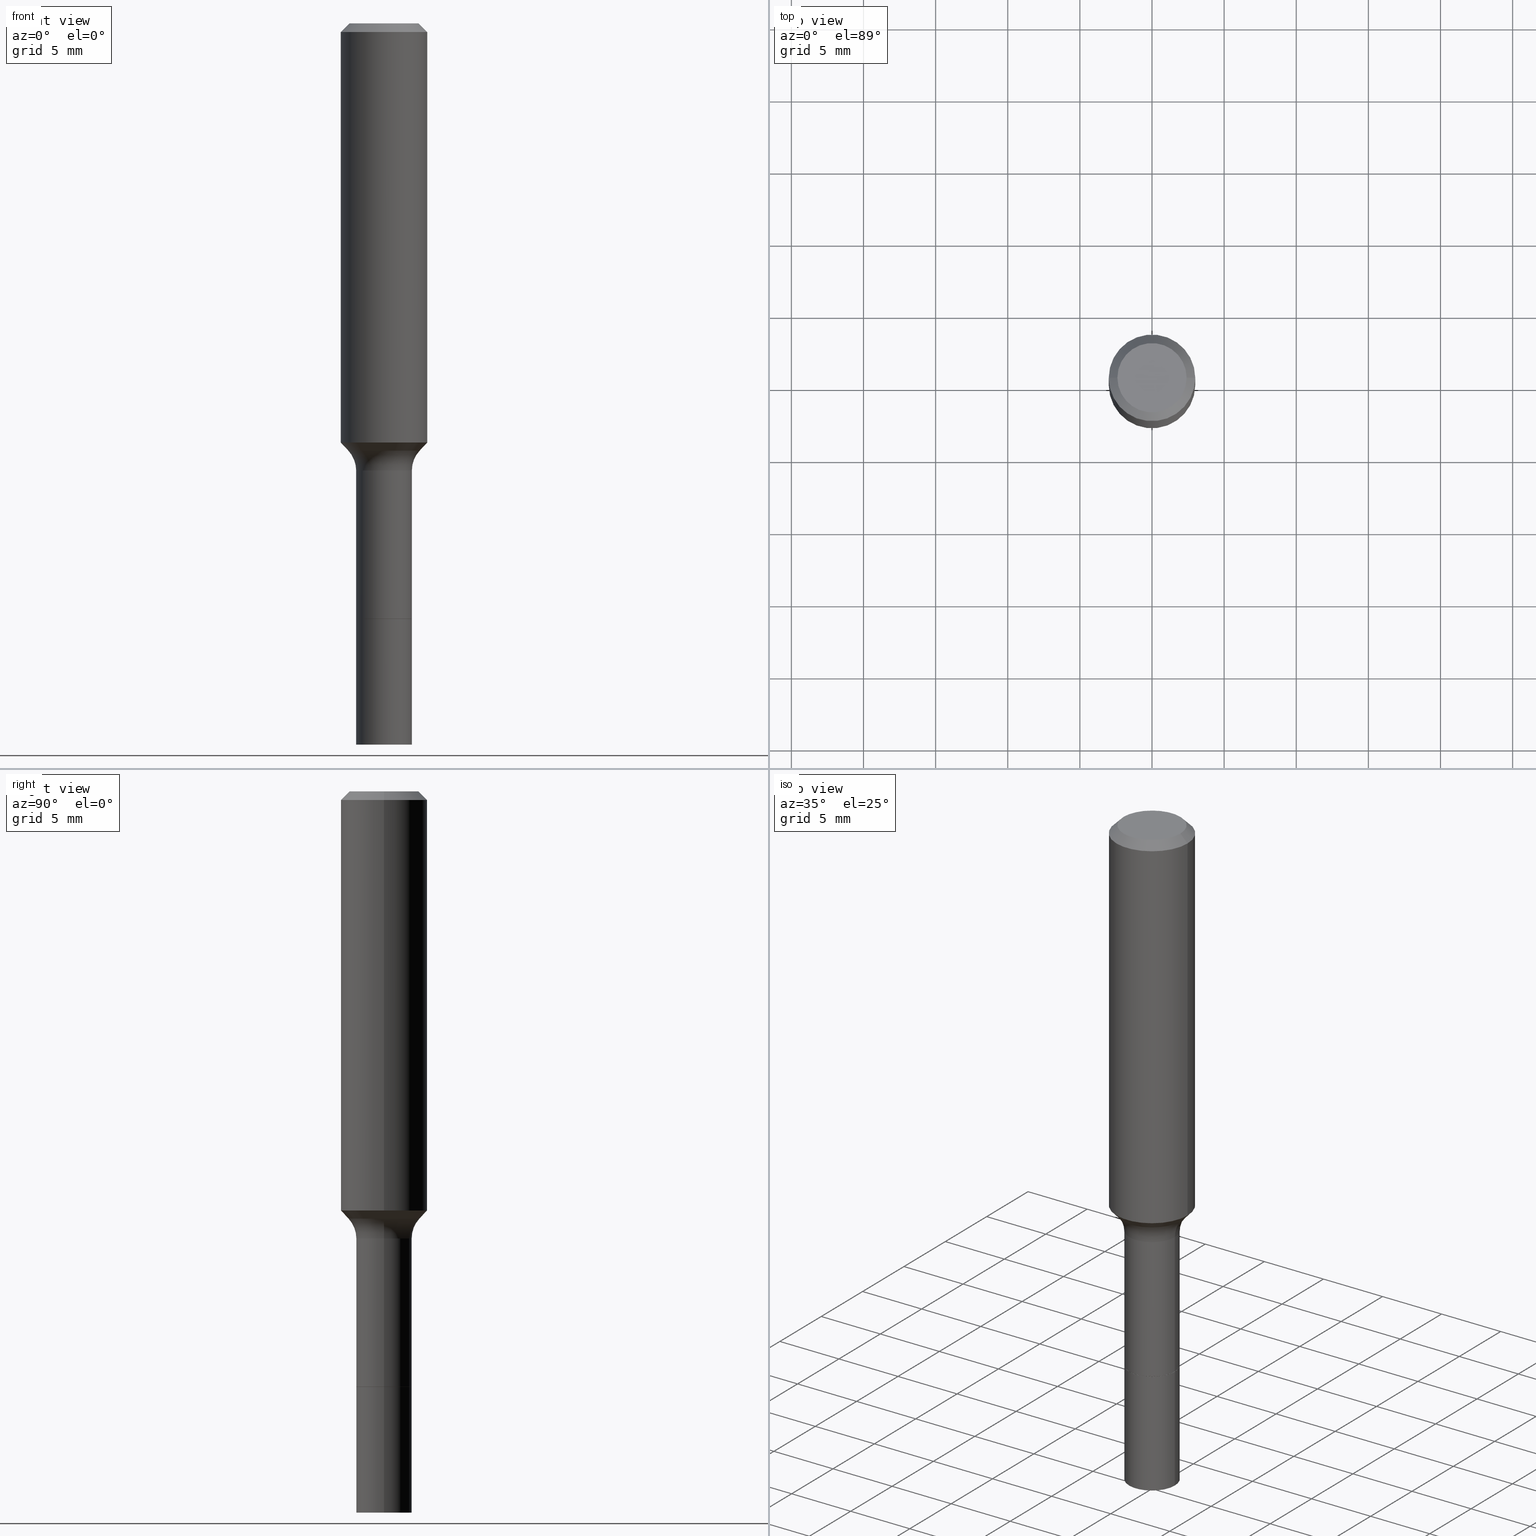
[diagram: canonical four-view strip — front | top / right | iso, engineering-drawing reading convention]
A machine part, canonical four-view strip (front | top / right | iso — engineering-drawing reading convention). The complete STEP part file that produces these views, byte-faithful:
ISO-10303-21;
HEADER;
FILE_DESCRIPTION (( 'STEP AP203' ),
    '1' );
FILE_NAME ('58494.STEP',
    '2025-04-01T15:23:46',
    ( '' ),
    ( '' ),
    'SwSTEP 2.0',
    'SolidWorks 2024',
    '' );
FILE_SCHEMA (( 'CONFIG_CONTROL_DESIGN' ));
ENDSEC;

DATA;
#1 = ORIENTED_EDGE ( 'NONE', *, *, #379, .F. ) ;
#2 = DIRECTION ( 'NONE',  ( 2.438088387897960049E-29, -3.491481338843145188E-15, -1.000000000000000000 ) ) ;
#3 = PERSON_AND_ORGANIZATION_ROLE ( 'creator' ) ;
#4 = DIRECTION ( 'NONE',  ( -2.445468806185136597E-29, 3.491481338843145583E-15, 1.000000000000000000 ) ) ;
#5 = EDGE_LOOP ( 'NONE', ( #263, #187 ) ) ;
#6 = DIRECTION ( 'NONE',  ( -0.6819983600625003639, 7.399397606724294465E-15, 0.7313537016191687945 ) ) ;
#7 = DIRECTION ( 'NONE',  ( 1.000000000000000000, -6.982962677686266711E-15, 4.876176775795936353E-29 ) ) ;
#8 = CARTESIAN_POINT ( 'NONE',  ( 3.975109544453939211E-29, -5.675402916289532927E-15, -1.625499999999999945 ) ) ;
#9 = EDGE_LOOP ( 'NONE', ( #117, #321 ) ) ;
#10 = DIRECTION ( 'NONE',  ( 1.000000000000000000, -6.982962677686269077E-15, 0.000000000000000000 ) ) ;
#11 = VERTEX_POINT ( 'NONE', #265 ) ;
#12 = EDGE_CURVE ( 'NONE', #181, #183, #143, .T. ) ;
#13 = CARTESIAN_POINT ( 'NONE',  ( 0.07549999999999998379, -6.202616598454845938E-15, -1.625499999999999945 ) ) ;
#14 = EDGE_CURVE ( 'NONE', #11, #380, #259, .T. ) ;
#15 = DIRECTION ( 'NONE',  ( -2.445468806185136877E-29, 3.491481338843145188E-15, 1.000000000000000000 ) ) ;
#16 = AXIS2_PLACEMENT_3D ( 'NONE', #277, #38, #42 ) ;
#17 = CARTESIAN_POINT ( 'NONE',  ( 4.813905344975441835E-29, -6.872981015512731707E-15, -1.968500000000000139 ) ) ;
#18 = DIRECTION ( 'NONE',  ( -2.445468806185136597E-29, 3.491481338843145583E-15, 1.000000000000000000 ) ) ;
#19 = FACE_OUTER_BOUND ( 'NONE', #5, .T. ) ;
#20 = DIRECTION ( 'NONE',  ( -2.445468806185136597E-29, 3.491481338843145583E-15, 1.000000000000000000 ) ) ;
#21 = ORIENTED_EDGE ( 'NONE', *, *, #454, .F. ) ;
#22 = CIRCLE ( 'NONE', #164, 0.07599999999999994260 ) ;
#23 = AXIS2_PLACEMENT_3D ( 'NONE', #463, #60, #347 ) ;
#24 = EDGE_LOOP ( 'NONE', ( #386, #293 ) ) ;
#25 = DIMENSIONAL_EXPONENTS ( 1.000000000000000000, 0.000000000000000000, 0.000000000000000000, 0.000000000000000000, 0.000000000000000000, 0.000000000000000000, 0.000000000000000000 ) ;
#26 = SHAPE_DEFINITION_REPRESENTATION ( #121, #231 ) ;
#27 = ADVANCED_FACE ( 'NONE', ( #19 ), #63, .T. ) ;
#28 = ORIENTED_EDGE ( 'NONE', *, *, #53, .T. ) ;
#29 = APPROVAL_DATE_TIME ( #358, #86 ) ;
#30 = APPROVAL_DATE_TIME ( #70, #349 ) ;
#31 = VERTEX_POINT ( 'NONE', #148 ) ;
#32 = CARTESIAN_POINT ( 'NONE',  ( 0.07549999999999998379, -6.202616598454845938E-15, -1.625499999999999945 ) ) ;
#33 = PERSON_AND_ORGANIZATION ( #225, #442 ) ;
#34 = AXIS2_PLACEMENT_3D ( 'NONE', #446, #329, #233 ) ;
#35 = CLOSED_SHELL ( 'NONE', ( #256, #27, #429, #292 ) ) ;
#36 = ORIENTED_EDGE ( 'NONE', *, *, #374, .F. ) ;
#37 = CARTESIAN_POINT ( 'NONE',  ( -0.09749170387046636466, -3.378137990455324273E-15, -1.165940131194999951 ) ) ;
#38 = DIRECTION ( 'NONE',  ( -6.982962677686266711E-15, -1.000000000000000000, 3.491481338843145583E-15 ) ) ;
#39 = ORIENTED_EDGE ( 'NONE', *, *, #216, .F. ) ;
#40 = CARTESIAN_POINT ( 'NONE',  ( 2.797226113460414960E-29, -3.993697548286125371E-15, -1.143840439258765329 ) ) ;
#41 = EDGE_CURVE ( 'NONE', #161, #43, #424, .T. ) ;
#42 = DIRECTION ( 'NONE',  ( 1.000000000000000000, -6.982962677686269077E-15, 0.000000000000000000 ) ) ;
#43 = VERTEX_POINT ( 'NONE', #389 ) ;
#44 = LINE ( 'NONE', #32, #193 ) ;
#45 = DIRECTION ( 'NONE',  ( 1.000000000000000000, -6.982962677686267499E-15, 4.883557194083112901E-29 ) ) ;
#46 = AXIS2_PLACEMENT_3D ( 'NONE', #248, #409, #200 ) ;
#47 = EDGE_LOOP ( 'NONE', ( #89, #496, #91, #130 ) ) ;
#48 = CARTESIAN_POINT ( 'NONE',  ( 2.851270220716778580E-29, -4.070858210275671756E-15, -1.165940131194999951 ) ) ;
#49 = VECTOR ( 'NONE', #15, 39.37007874015748143 ) ;
#50 = ORIENTED_EDGE ( 'NONE', *, *, #129, .T. ) ;
#51 = CC_DESIGN_APPROVAL ( #349, ( #425 ) ) ;
#52 = AXIS2_PLACEMENT_3D ( 'NONE', #451, #4, #45 ) ;
#53 = EDGE_CURVE ( 'NONE', #483, #278, #367, .T. ) ;
#54 = DIRECTION ( 'NONE',  ( 1.000000000000000000, -6.982962677686263555E-15, 0.000000000000000000 ) ) ;
#55 = LOCAL_TIME ( 11, 23, 46.00000000000000000, #506 ) ;
#56 = APPLICATION_PROTOCOL_DEFINITION ( 'international standard', 'config_control_design', 1994, #271 ) ;
#57 =( LENGTH_UNIT ( ) NAMED_UNIT ( * ) SI_UNIT ( $, .METRE. ) );
#58 = AXIS2_PLACEMENT_3D ( 'NONE', #90, #245, #351 ) ;
#59 = CARTESIAN_POINT ( 'NONE',  ( -0.07600000000000012301, -5.734179486723455696E-15, -1.968500000000000139 ) ) ;
#60 = DIRECTION ( 'NONE',  ( 2.438088387897960049E-29, -3.491481338843145188E-15, -1.000000000000000000 ) ) ;
#61 = MANIFOLD_SOLID_BREP ( 'Body-Move/Copy2[1]', #35 ) ;
#62 = CC_DESIGN_SECURITY_CLASSIFICATION ( #494, ( #313 ) ) ;
#63 = PLANE ( 'NONE',  #23 ) ;
#64 = ORIENTED_EDGE ( 'NONE', *, *, #108, .T. ) ;
#65 = AXIS2_PLACEMENT_3D ( 'NONE', #393, #196, #204 ) ;
#66 = EDGE_CURVE ( 'NONE', #278, #380, #220, .T. ) ;
#67 = MANIFOLD_SOLID_BREP ( 'Body-Move/Copy2[2]', #173 ) ;
#68 = CARTESIAN_POINT ( 'NONE',  ( -0.07600000000000005362, -5.135390437111856307E-15, -1.625499999999999945 ) ) ;
#69 = DATE_TIME_ROLE ( 'creation_date' ) ;
#70 = DATE_AND_TIME ( #427, #211 ) ;
#71 = VERTEX_POINT ( 'NONE', #502 ) ;
#72 = DIRECTION ( 'NONE',  ( 1.000000000000000000, -6.982962677686266711E-15, 0.000000000000000000 ) ) ;
#73 = EDGE_LOOP ( 'NONE', ( #157, #448, #325, #407 ) ) ;
#74 = DIRECTION ( 'NONE',  ( 1.000000000000000000, -6.982962677686265133E-15, 0.000000000000000000 ) ) ;
#75 = CALENDAR_DATE ( 2025, 1, 4 ) ;
#76 = CONICAL_SURFACE ( 'NONE', #291, 0.07549999999999998379, 0.7853981633975591903 ) ;
#77 = DIRECTION ( 'NONE',  ( -1.000000000000000000, 6.982962677686265922E-15, -4.876176775795935793E-29 ) ) ;
#78 = ORIENTED_EDGE ( 'NONE', *, *, #166, .T. ) ;
#79 = ADVANCED_FACE ( 'NONE', ( #182 ), #345, .T. ) ;
#80 = CARTESIAN_POINT ( 'NONE',  ( 3.975109544453939211E-29, -5.675402916289532927E-15, -1.625499999999999945 ) ) ;
#81 = CALENDAR_DATE ( 2025, 1, 4 ) ;
#82 = CARTESIAN_POINT ( 'NONE',  ( -0.07549999999999998379, -5.138943150790657994E-15, -1.625499999999999945 ) ) ;
#83 = LINE ( 'NONE', #397, #419 ) ;
#84 = ORIENTED_EDGE ( 'NONE', *, *, #116, .F. ) ;
#85 = PLANE ( 'NONE',  #142 ) ;
#86 = APPROVAL ( #87, 'UNSPECIFIED' ) ;
#87 = APPROVAL_STATUS ( 'not_yet_approved' ) ;
#88 = PLANE ( 'NONE',  #178 ) ;
#89 = ORIENTED_EDGE ( 'NONE', *, *, #213, .F. ) ;
#90 = CARTESIAN_POINT ( 'NONE',  ( 7.545787641473140628E-46, -1.077338491108201769E-31, -3.085620075131671975E-17 ) ) ;
#91 = ORIENTED_EDGE ( 'NONE', *, *, #379, .T. ) ;
#92 = ORIENTED_EDGE ( 'NONE', *, *, #499, .F. ) ;
#93 =( NAMED_UNIT ( * ) SI_UNIT ( $, .STERADIAN. ) SOLID_ANGLE_UNIT ( ) );
#94 = FACE_OUTER_BOUND ( 'NONE', #331, .T. ) ;
#95 = VECTOR ( 'NONE', #195, 39.37007874015748143 ) ;
#96 = LINE ( 'NONE', #456, #49 ) ;
#97 = VECTOR ( 'NONE', #224, 39.37007874015748143 ) ;
#98 = DIRECTION ( 'NONE',  ( 1.000000000000000000, -6.982962677686265922E-15, 4.876176775795935793E-29 ) ) ;
#99 = PERSON_AND_ORGANIZATION ( #225, #442 ) ;
#100 =( GEOMETRIC_REPRESENTATION_CONTEXT ( 3 ) GLOBAL_UNCERTAINTY_ASSIGNED_CONTEXT ( ( #430 ) ) GLOBAL_UNIT_ASSIGNED_CONTEXT ( ( #145, #455, #93 ) ) REPRESENTATION_CONTEXT ( 'NONE', 'WORKASPACE' ) );
#101 = AXIS2_PLACEMENT_3D ( 'NONE', #124, #283, #154 ) ;
#102 = CARTESIAN_POINT ( 'NONE',  ( 0.07600000000000005362, -6.206108079793689734E-15, -1.625499999999999945 ) ) ;
#103 = AXIS2_PLACEMENT_3D ( 'NONE', #346, #308, #218 ) ;
#104 = CC_DESIGN_PERSON_AND_ORGANIZATION_ASSIGNMENT ( #125, #199, ( #313 ) ) ;
#105 = CARTESIAN_POINT ( 'NONE',  ( 0.1181000000000000660, -8.246878922347485584E-16, 5.758764772215003944E-30 ) ) ;
#106 = DIRECTION ( 'NONE',  ( 1.000000000000000000, -6.982962677686266711E-15, 0.000000000000000000 ) ) ;
#107 = DIRECTION ( 'NONE',  ( -2.445468806185136597E-29, 3.491481338843145583E-15, 1.000000000000000000 ) ) ;
#108 = EDGE_CURVE ( 'NONE', #71, #485, #184, .T. ) ;
#109 = COORDINATED_UNIVERSAL_TIME_OFFSET ( 5, 0, .BEHIND. ) ;
#110 = CONICAL_SURFACE ( 'NONE', #434, 0.09749170387046635078, 0.7504915783575641930 ) ;
#111 = ORIENTED_EDGE ( 'NONE', *, *, #307, .F. ) ;
#112 = PERSON_AND_ORGANIZATION ( #225, #442 ) ;
#113 = EDGE_LOOP ( 'NONE', ( #352, #513, #39, #1 ) ) ;
#114 = DIRECTION ( 'NONE',  ( -2.445468806185136597E-29, 3.491481338843145583E-15, 1.000000000000000000 ) ) ;
#115 = CARTESIAN_POINT ( 'NONE',  ( 0.07599999999999999811, -6.204362339124268230E-15, -1.625000000000000000 ) ) ;
#116 = EDGE_CURVE ( 'NONE', #483, #11, #459, .T. ) ;
#117 = ORIENTED_EDGE ( 'NONE', *, *, #320, .F. ) ;
#118 = CARTESIAN_POINT ( 'NONE',  ( -0.07600000000000001199, -4.427492595661410183E-15, -1.625000000000000000 ) ) ;
#119 = APPROVAL_STATUS ( 'not_yet_approved' ) ;
#120 = AXIS2_PLACEMENT_3D ( 'NONE', #159, #126, #77 ) ;
#121 = PRODUCT_DEFINITION_SHAPE ( 'NONE', 'NONE',  #425 ) ;
#122 = AXIS2_PLACEMENT_3D ( 'NONE', #500, #107, #350 ) ;
#123 = ORIENTED_EDGE ( 'NONE', *, *, #41, .T. ) ;
#124 = CARTESIAN_POINT ( 'NONE',  ( -0.1559999999999999443, -3.152906306272303331E-15, -1.220499999999999918 ) ) ;
#125 = PERSON_AND_ORGANIZATION ( #225, #442 ) ;
#126 = DIRECTION ( 'NONE',  ( 2.438088387897960049E-29, -3.491481338843145188E-15, -1.000000000000000000 ) ) ;
#127 = EDGE_LOOP ( 'NONE', ( #382, #246, #328, #197 ) ) ;
#128 = DIRECTION ( 'NONE',  ( -2.445468806185136597E-29, 3.491481338843145583E-15, 1.000000000000000000 ) ) ;
#129 = EDGE_CURVE ( 'NONE', #183, #43, #332, .T. ) ;
#130 = ORIENTED_EDGE ( 'NONE', *, *, #166, .F. ) ;
#131 = DIRECTION ( 'NONE',  ( 1.000000000000000000, -6.982962677686265133E-15, 0.000000000000000000 ) ) ;
#132 = CIRCLE ( 'NONE', #46, 0.07599999999999999811 ) ;
#133 = ORIENTED_EDGE ( 'NONE', *, *, #185, .F. ) ;
#134 = EDGE_CURVE ( 'NONE', #380, #11, #447, .T. ) ;
#135 = FACE_OUTER_BOUND ( 'NONE', #508, .T. ) ;
#136 = CIRCLE ( 'NONE', #58, 0.09447999999999998066 ) ;
#137 = PERSON_AND_ORGANIZATION ( #225, #442 ) ;
#138 = ADVANCED_FACE ( 'NONE', ( #365 ), #110, .T. ) ;
#139 = DIRECTION ( 'NONE',  ( 1.000000000000000000, -6.982962677686269866E-15, 0.000000000000000000 ) ) ;
#140 = DIRECTION ( 'NONE',  ( -2.445468806185136877E-29, 3.491481338843145188E-15, 1.000000000000000000 ) ) ;
#141 = DIRECTION ( 'NONE',  ( -2.445468806185136597E-29, 3.491481338843145583E-15, 1.000000000000000000 ) ) ;
#142 = AXIS2_PLACEMENT_3D ( 'NONE', #80, #2, #322 ) ;
#143 = LINE ( 'NONE', #105, #453 ) ;
#144 = EDGE_CURVE ( 'NONE', #485, #71, #22, .T. ) ;
#145 =( CONVERSION_BASED_UNIT ( 'INCH', #460 ) LENGTH_UNIT ( ) NAMED_UNIT ( #25 ) );
#146 = CARTESIAN_POINT ( 'NONE',  ( 5.776197320209328408E-31, -8.246878922347560526E-17, -0.02362000000000014435 ) ) ;
#147 = AXIS2_PLACEMENT_3D ( 'NONE', #174, #334, #449 ) ;
#148 = CARTESIAN_POINT ( 'NONE',  ( -0.07549999999999998379, -5.136293923616546793E-15, -1.625499999999999945 ) ) ;
#149 = DATE_AND_TIME ( #362, #188 ) ;
#150 = DIRECTION ( 'NONE',  ( -2.445468806185136597E-29, 3.491481338843145583E-15, 1.000000000000000000 ) ) ;
#151 = CALENDAR_DATE ( 2025, 1, 4 ) ;
#152 = CIRCLE ( 'NONE', #101, 0.08000000000000002942 ) ;
#153 = EDGE_LOOP ( 'NONE', ( #227, #411, #202, #428 ) ) ;
#154 = DIRECTION ( 'NONE',  ( -1.000000000000000000, 7.105427357601001859E-15, 0.000000000000000000 ) ) ;
#155 = COORDINATED_UNIVERSAL_TIME_OFFSET ( 5, 0, .BEHIND. ) ;
#156 = AXIS2_PLACEMENT_3D ( 'NONE', #495, #141, #139 ) ;
#157 = ORIENTED_EDGE ( 'NONE', *, *, #488, .T. ) ;
#158 = CARTESIAN_POINT ( 'NONE',  ( 0.07600000000000012301, -7.403686179016889303E-15, -1.968500000000000139 ) ) ;
#159 = CARTESIAN_POINT ( 'NONE',  ( 3.772893820736570314E-46, -5.386692455541008845E-32, -1.542810037565835988E-17 ) ) ;
#160 = DIRECTION ( 'NONE',  ( 1.000000000000000000, -6.982962677686267499E-15, 4.875432709231658792E-29 ) ) ;
#161 = VERTEX_POINT ( 'NONE', #198 ) ;
#162 = CARTESIAN_POINT ( 'NONE',  ( -0.09447999999999998066, 7.009847083995354710E-16, -3.085620075132147757E-17 ) ) ;
#163 = PERSON_AND_ORGANIZATION_ROLE ( 'creator' ) ;
#164 = AXIS2_PLACEMENT_3D ( 'NONE', #209, #371, #290 ) ;
#165 = EDGE_LOOP ( 'NONE', ( #189, #286, #372, #92 ) ) ;
#166 = EDGE_CURVE ( 'NONE', #161, #181, #194, .T. ) ;
#167 = DIRECTION ( 'NONE',  ( -2.445468806185136597E-29, 3.491481338843145583E-15, 1.000000000000000000 ) ) ;
#168 = EDGE_LOOP ( 'NONE', ( #369, #312, #50, #466 ) ) ;
#169 = CONICAL_SURFACE ( 'NONE', #251, 0.07549999999999998379, 0.7853981633975591903 ) ;
#170 = CARTESIAN_POINT ( 'NONE',  ( 0.1180999999999999966, -9.071566814582237199E-16, -0.02362000000000014435 ) ) ;
#171 = ORIENTED_EDGE ( 'NONE', *, *, #129, .F. ) ;
#172 = AXIS2_PLACEMENT_3D ( 'NONE', #468, #114, #318 ) ;
#173 = CLOSED_SHELL ( 'NONE', ( #480, #474, #461, #138, #335, #517, #405, #383, #79, #268, #330, #413, #422, #264 ) ) ;
#174 = CARTESIAN_POINT ( 'NONE',  ( 5.776197320209328408E-31, -8.246878922347560526E-17, -0.02362000000000014435 ) ) ;
#175 = CC_DESIGN_DATE_AND_TIME_ASSIGNMENT ( #149, #69, ( #425 ) ) ;
#176 = DIRECTION ( 'NONE',  ( 1.000000000000000000, 0.000000000000000000, 0.000000000000000000 ) ) ;
#177 = DIRECTION ( 'NONE',  ( 1.000000000000000000, -6.982962677686266711E-15, 0.000000000000000000 ) ) ;
#178 = AXIS2_PLACEMENT_3D ( 'NONE', #490, #244, #98 ) ;
#179 = CARTESIAN_POINT ( 'NONE',  ( 0.07599999999999994260, -4.792058137562214256E-15, -1.220499999999999918 ) ) ;
#180 = CC_DESIGN_PERSON_AND_ORGANIZATION_ASSIGNMENT ( #243, #190, ( #494 ) ) ;
#181 = VERTEX_POINT ( 'NONE', #357 ) ;
#182 = FACE_OUTER_BOUND ( 'NONE', #47, .T. ) ;
#183 = VERTEX_POINT ( 'NONE', #170 ) ;
#184 = CIRCLE ( 'NONE', #475, 0.07599999999999994260 ) ;
#185 = EDGE_CURVE ( 'NONE', #205, #272, #304, .T. ) ;
#186 = DIRECTION ( 'NONE',  ( 1.000000000000000000, -6.982962677686267499E-15, 4.883557194083112901E-29 ) ) ;
#187 = ORIENTED_EDGE ( 'NONE', *, *, #53, .F. ) ;
#188 = LOCAL_TIME ( 11, 23, 46.00000000000000000, #109 ) ;
#189 = ORIENTED_EDGE ( 'NONE', *, *, #374, .T. ) ;
#190 = PERSON_AND_ORGANIZATION_ROLE ( 'classification_officer' ) ;
#191 = ORIENTED_EDGE ( 'NONE', *, *, #12, .F. ) ;
#192 = DIRECTION ( 'NONE',  ( 0.7071067811866259545, -2.468850131083078659E-15, 0.7071067811864690800 ) ) ;
#193 = VECTOR ( 'NONE', #192, 39.37007874015748143 ) ;
#194 = CIRCLE ( 'NONE', #258, 0.1181000000000001354 ) ;
#195 = DIRECTION ( 'NONE',  ( -2.445468806185136877E-29, 3.491481338843145188E-15, 1.000000000000000000 ) ) ;
#196 = DIRECTION ( 'NONE',  ( 2.445468806185136597E-29, -3.491481338843145583E-15, -1.000000000000000000 ) ) ;
#197 = ORIENTED_EDGE ( 'NONE', *, *, #504, .T. ) ;
#198 = CARTESIAN_POINT ( 'NONE',  ( -0.1181000000000001354, -3.154546577353446386E-15, -1.143840439258765329 ) ) ;
#199 = PERSON_AND_ORGANIZATION_ROLE ( 'design_supplier' ) ;
#200 = DIRECTION ( 'NONE',  ( 1.000000000000000000, -6.982962677686269077E-15, 0.000000000000000000 ) ) ;
#201 = PRODUCT ( '58494', '58494', '', ( #255 ) ) ;
#202 = ORIENTED_EDGE ( 'NONE', *, *, #238, .T. ) ;
#203 = CARTESIAN_POINT ( 'NONE',  ( 3.973886810050846970E-29, -5.673657175620112213E-15, -1.625000000000000000 ) ) ;
#204 = DIRECTION ( 'NONE',  ( -1.000000000000000000, 6.982962677686266711E-15, 0.000000000000000000 ) ) ;
#205 = VERTEX_POINT ( 'NONE', #509 ) ;
#206 = DIRECTION ( 'NONE',  ( -2.445468806185136597E-29, 3.491481338843145583E-15, 1.000000000000000000 ) ) ;
#207 = FACE_OUTER_BOUND ( 'NONE', #470, .T. ) ;
#208 = ORIENTED_EDGE ( 'NONE', *, *, #370, .T. ) ;
#209 = CARTESIAN_POINT ( 'NONE',  ( 2.984694677948959472E-29, -4.261352974058059028E-15, -1.220499999999999918 ) ) ;
#210 = ORIENTED_EDGE ( 'NONE', *, *, #454, .T. ) ;
#211 = LOCAL_TIME ( 11, 23, 46.00000000000000000, #269 ) ;
#212 = LINE ( 'NONE', #82, #280 ) ;
#213 = EDGE_CURVE ( 'NONE', #272, #161, #229, .T. ) ;
#214 = CONICAL_SURFACE ( 'NONE', #65, 0.1180999999999999966, 0.7853981633974461696 ) ;
#215 = APPROVAL_PERSON_ORGANIZATION ( #309, #501, #276 ) ;
#216 = EDGE_CURVE ( 'NONE', #181, #161, #373, .T. ) ;
#217 = AXIS2_PLACEMENT_3D ( 'NONE', #481, #396, #471 ) ;
#218 = DIRECTION ( 'NONE',  ( 1.000000000000000000, -6.982962677686269077E-15, 0.000000000000000000 ) ) ;
#219 = APPROVAL_STATUS ( 'not_yet_approved' ) ;
#220 = LINE ( 'NONE', #102, #234 ) ;
#221 = EDGE_CURVE ( 'NONE', #272, #71, #152, .T. ) ;
#222 = CONICAL_SURFACE ( 'NONE', #147, 0.1180999999999999966, 0.7853981633974461696 ) ;
#223 = TOROIDAL_SURFACE ( 'NONE', #52, 0.1559999999999999443, 0.08000000000000002942 ) ;
#224 = DIRECTION ( 'NONE',  ( -2.445468806185136877E-29, 3.491481338843145188E-15, 1.000000000000000000 ) ) ;
#225 = PERSON ( 'UNSPECIFIED', 'UNSPECIFIED', 'UNSPECIFIED', ('UNSPECIFIED'), ('UNSPECIFIED'), ('UNSPECIFIED') ) ;
#226 = PRODUCT_RELATED_PRODUCT_CATEGORY ( 'detail', '', ( #201 ) ) ;
#227 = ORIENTED_EDGE ( 'NONE', *, *, #370, .F. ) ;
#228 = EDGE_CURVE ( 'NONE', #274, #183, #327, .T. ) ;
#229 = LINE ( 'NONE', #484, #344 ) ;
#230 = APPROVAL_DATE_TIME ( #284, #501 ) ;
#231 = ADVANCED_BREP_SHAPE_REPRESENTATION ( '58494', ( #61, #67, #514 ), #100 ) ;
#232 = ORIENTED_EDGE ( 'NONE', *, *, #221, .F. ) ;
#233 = DIRECTION ( 'NONE',  ( 1.000000000000000000, -6.982962677686266711E-15, 0.000000000000000000 ) ) ;
#234 = VECTOR ( 'NONE', #343, 39.37007874015748143 ) ;
#235 = FACE_OUTER_BOUND ( 'NONE', #9, .T. ) ;
#236 = ORIENTED_EDGE ( 'NONE', *, *, #216, .T. ) ;
#237 = CYLINDRICAL_SURFACE ( 'NONE', #172, 0.07600000000000005362 ) ;
#238 = EDGE_CURVE ( 'NONE', #395, #423, #44, .T. ) ;
#239 = CARTESIAN_POINT ( 'NONE',  ( 0.07599999999999999811, -6.206108079793689734E-15, -1.625499999999999945 ) ) ;
#240 = CARTESIAN_POINT ( 'NONE',  ( 2.851270220716778580E-29, -4.070858210275671756E-15, -1.165940131194999951 ) ) ;
#241 = VERTEX_POINT ( 'NONE', #162 ) ;
#242 = DIRECTION ( 'NONE',  ( 0.7071067811865460184, -7.319954787623251312E-15, -0.7071067811865490160 ) ) ;
#243 = PERSON_AND_ORGANIZATION ( #225, #442 ) ;
#244 = DIRECTION ( 'NONE',  ( -2.438088387897960049E-29, 3.491481338843145188E-15, 1.000000000000000000 ) ) ;
#245 = DIRECTION ( 'NONE',  ( -2.445468806185136597E-29, 3.491481338843145583E-15, 1.000000000000000000 ) ) ;
#246 = ORIENTED_EDGE ( 'NONE', *, *, #302, .F. ) ;
#247 = DIRECTION ( 'NONE',  ( -2.445468806185136597E-29, 3.491481338843145583E-15, 1.000000000000000000 ) ) ;
#248 = CARTESIAN_POINT ( 'NONE',  ( 3.973886810050846970E-29, -5.673657175620112213E-15, -1.625000000000000000 ) ) ;
#249 = ORIENTED_EDGE ( 'NONE', *, *, #499, .T. ) ;
#250 = AXIS2_PLACEMENT_3D ( 'NONE', #260, #20, #177 ) ;
#251 = AXIS2_PLACEMENT_3D ( 'NONE', #381, #450, #54 ) ;
#252 = EDGE_CURVE ( 'NONE', #289, #423, #492, .T. ) ;
#253 = CYLINDRICAL_SURFACE ( 'NONE', #472, 0.1181000000000000660 ) ;
#254 = AXIS2_PLACEMENT_3D ( 'NONE', #240, #316, #72 ) ;
#255 = MECHANICAL_CONTEXT ( 'NONE', #384, 'mechanical' ) ;
#256 = ADVANCED_FACE ( 'NONE', ( #314 ), #237, .T. ) ;
#257 = CC_DESIGN_APPROVAL ( #501, ( #494 ) ) ;
#258 = AXIS2_PLACEMENT_3D ( 'NONE', #40, #167, #74 ) ;
#259 = CIRCLE ( 'NONE', #103, 0.07599999999999999811 ) ;
#260 = CARTESIAN_POINT ( 'NONE',  ( 5.776197320209328408E-31, -8.246878922347560526E-17, -0.02362000000000014435 ) ) ;
#261 = CARTESIAN_POINT ( 'NONE',  ( 2.984694677948959472E-29, -4.261352974058059028E-15, -1.220499999999999918 ) ) ;
#262 = DIRECTION ( 'NONE',  ( 1.000000000000000000, -6.982962677686267499E-15, 4.876176775795935793E-29 ) ) ;
#263 = ORIENTED_EDGE ( 'NONE', *, *, #488, .F. ) ;
#264 = ADVANCED_FACE ( 'NONE', ( #275 ), #76, .T. ) ;
#265 = CARTESIAN_POINT ( 'NONE',  ( -0.07599999999999999811, -5.734179486723456485E-15, -1.625499999999999945 ) ) ;
#266 = CIRCLE ( 'NONE', #254, 0.09749170387046635078 ) ;
#267 = DIRECTION ( 'NONE',  ( -2.445468806185136877E-29, 3.491481338843145188E-15, 1.000000000000000000 ) ) ;
#268 = ADVANCED_FACE ( 'NONE', ( #400 ), #515, .T. ) ;
#269 = COORDINATED_UNIVERSAL_TIME_OFFSET ( 5, 0, .BEHIND. ) ;
#270 = EDGE_LOOP ( 'NONE', ( #111, #360, #64, #21 ) ) ;
#271 = APPLICATION_CONTEXT ( 'configuration controlled 3d designs of mechanical parts and assemblies' ) ;
#272 = VERTEX_POINT ( 'NONE', #37 ) ;
#273 = CC_DESIGN_PERSON_AND_ORGANIZATION_ASSIGNMENT ( #390, #163, ( #313 ) ) ;
#274 = VERTEX_POINT ( 'NONE', #361 ) ;
#275 = FACE_OUTER_BOUND ( 'NONE', #153, .T. ) ;
#276 = APPROVAL_ROLE ( '' ) ;
#277 = CARTESIAN_POINT ( 'NONE',  ( 0.1559999999999999443, -5.350695151777116698E-15, -1.220499999999999918 ) ) ;
#278 = VERTEX_POINT ( 'NONE', #158 ) ;
#279 = FACE_OUTER_BOUND ( 'NONE', #402, .T. ) ;
#280 = VECTOR ( 'NONE', #491, 39.37007874015748143 ) ;
#281 = DIRECTION ( 'NONE',  ( 0.6819983600625003639, -2.208861293262494341E-15, 0.7313537016191687945 ) ) ;
#282 = DIRECTION ( 'NONE',  ( 1.000000000000000000, -6.982962677686263555E-15, 0.000000000000000000 ) ) ;
#283 = DIRECTION ( 'NONE',  ( 7.105427357601001859E-15, 1.000000000000000000, -3.491481338843145583E-15 ) ) ;
#284 = DATE_AND_TIME ( #151, #55 ) ;
#285 = CIRCLE ( 'NONE', #250, 0.1180999999999999966 ) ;
#286 = ORIENTED_EDGE ( 'NONE', *, *, #441, .T. ) ;
#287 = CARTESIAN_POINT ( 'NONE',  ( 3.975109544453939211E-29, -5.675402916289532927E-15, -1.625499999999999945 ) ) ;
#288 = DIRECTION ( 'NONE',  ( -0.7071067811865460184, 2.468850131082241283E-15, -0.7071067811865490160 ) ) ;
#289 = VERTEX_POINT ( 'NONE', #118 ) ;
#290 = DIRECTION ( 'NONE',  ( 1.000000000000000000, -6.982962677686261189E-15, 0.000000000000000000 ) ) ;
#291 = AXIS2_PLACEMENT_3D ( 'NONE', #287, #403, #432 ) ;
#292 = ADVANCED_FACE ( 'NONE', ( #279 ), #85, .F. ) ;
#293 = ORIENTED_EDGE ( 'NONE', *, *, #326, .T. ) ;
#294 = APPROVAL_PERSON_ORGANIZATION ( #33, #86, #348 ) ;
#295 = DIRECTION ( 'NONE',  ( -2.445468806185136597E-29, 3.491481338843145583E-15, 1.000000000000000000 ) ) ;
#296 = EDGE_CURVE ( 'NONE', #31, #395, #464, .T. ) ;
#297 = FACE_OUTER_BOUND ( 'NONE', #439, .T. ) ;
#298 = AXIS2_PLACEMENT_3D ( 'NONE', #408, #440, #131 ) ;
#299 = VECTOR ( 'NONE', #140, 39.37007874015748143 ) ;
#300 = DIRECTION ( 'NONE',  ( 0.000000000000000000, 0.000000000000000000, 1.000000000000000000 ) ) ;
#301 = ORIENTED_EDGE ( 'NONE', *, *, #41, .F. ) ;
#302 = EDGE_CURVE ( 'NONE', #241, #274, #136, .T. ) ;
#303 = APPROVAL_ROLE ( '' ) ;
#304 = CIRCLE ( 'NONE', #34, 0.09749170387046635078 ) ;
#305 = CARTESIAN_POINT ( 'NONE',  ( -0.1181000000000000660, 8.391509709326787887E-16, -5.809262341591047287E-30 ) ) ;
#306 = DIRECTION ( 'NONE',  ( -2.445468806185136597E-29, 3.491481338843145583E-15, 1.000000000000000000 ) ) ;
#307 = EDGE_CURVE ( 'NONE', #272, #205, #266, .T. ) ;
#308 = DIRECTION ( 'NONE',  ( -2.445468806185136597E-29, 3.491481338843145583E-15, 1.000000000000000000 ) ) ;
#309 = PERSON_AND_ORGANIZATION ( #225, #442 ) ;
#310 = AXIS2_PLACEMENT_3D ( 'NONE', #478, #336, #186 ) ;
#311 = EDGE_LOOP ( 'NONE', ( #375, #473, #249, #421 ) ) ;
#312 = ORIENTED_EDGE ( 'NONE', *, *, #228, .T. ) ;
#313 = PRODUCT_DEFINITION_FORMATION_WITH_SPECIFIED_SOURCE ( 'ANY', '', #201, .NOT_KNOWN. ) ;
#314 = FACE_OUTER_BOUND ( 'NONE', #73, .T. ) ;
#315 = DATE_TIME_ROLE ( 'classification_date' ) ;
#316 = DIRECTION ( 'NONE',  ( -2.445468806185136597E-29, 3.491481338843145583E-15, 1.000000000000000000 ) ) ;
#317 = ORIENTED_EDGE ( 'NONE', *, *, #14, .T. ) ;
#318 = DIRECTION ( 'NONE',  ( 1.000000000000000000, -6.982962677686263555E-15, 0.000000000000000000 ) ) ;
#319 = DIRECTION ( 'NONE',  ( -2.445468806185136597E-29, 3.491481338843145583E-15, 1.000000000000000000 ) ) ;
#320 = EDGE_CURVE ( 'NONE', #395, #31, #452, .T. ) ;
#321 = ORIENTED_EDGE ( 'NONE', *, *, #296, .F. ) ;
#322 = DIRECTION ( 'NONE',  ( -1.000000000000000000, 6.982962677686265922E-15, -4.876176775795935793E-29 ) ) ;
#323 = CIRCLE ( 'NONE', #458, 0.09447999999999998066 ) ;
#324 = CYLINDRICAL_SURFACE ( 'NONE', #340, 0.07600000000000005362 ) ;
#325 = ORIENTED_EDGE ( 'NONE', *, *, #134, .F. ) ;
#326 = EDGE_CURVE ( 'NONE', #274, #241, #323, .T. ) ;
#327 = LINE ( 'NONE', #391, #394 ) ;
#328 = ORIENTED_EDGE ( 'NONE', *, *, #359, .T. ) ;
#329 = DIRECTION ( 'NONE',  ( -2.445468806185136597E-29, 3.491481338843145583E-15, 1.000000000000000000 ) ) ;
#330 = ADVANCED_FACE ( 'NONE', ( #467 ), #214, .T. ) ;
#331 = EDGE_LOOP ( 'NONE', ( #445, #208, #36, #356 ) ) ;
#332 = CIRCLE ( 'NONE', #385, 0.1180999999999999966 ) ;
#333 = AXIS2_PLACEMENT_3D ( 'NONE', #17, #306, #342 ) ;
#334 = DIRECTION ( 'NONE',  ( 2.445468806185136597E-29, -3.491481338843145583E-15, -1.000000000000000000 ) ) ;
#335 = ADVANCED_FACE ( 'NONE', ( #512 ), #410, .F. ) ;
#336 = DIRECTION ( 'NONE',  ( -2.445468806185136597E-29, 3.491481338843145583E-15, 1.000000000000000000 ) ) ;
#337 = PLANE ( 'NONE',  #120 ) ;
#338 = CC_DESIGN_PERSON_AND_ORGANIZATION_ASSIGNMENT ( #99, #417, ( #201 ) ) ;
#339 = CARTESIAN_POINT ( 'NONE',  ( 0.000000000000000000, 0.000000000000000000, 0.000000000000000000 ) ) ;
#340 = AXIS2_PLACEMENT_3D ( 'NONE', #404, #414, #401 ) ;
#341 = CIRCLE ( 'NONE', #156, 0.07600000000000012301 ) ;
#342 = DIRECTION ( 'NONE',  ( 1.000000000000000000, -6.982962677686269866E-15, 0.000000000000000000 ) ) ;
#343 = DIRECTION ( 'NONE',  ( -2.445468806185136877E-29, 3.491481338843145188E-15, 1.000000000000000000 ) ) ;
#344 = VECTOR ( 'NONE', #6, 39.37007874015748143 ) ;
#345 = CONICAL_SURFACE ( 'NONE', #122, 0.09749170387046635078, 0.7504915783575641930 ) ;
#346 = CARTESIAN_POINT ( 'NONE',  ( 3.975109544453939211E-29, -5.675402916289532927E-15, -1.625499999999999945 ) ) ;
#347 = DIRECTION ( 'NONE',  ( -1.000000000000000000, 6.982962677686265922E-15, -4.876176775795935793E-29 ) ) ;
#348 = APPROVAL_ROLE ( '' ) ;
#349 = APPROVAL ( #219, 'UNSPECIFIED' ) ;
#350 = DIRECTION ( 'NONE',  ( 1.000000000000000000, -6.982962677686266711E-15, 0.000000000000000000 ) ) ;
#351 = DIRECTION ( 'NONE',  ( 1.000000000000000000, -6.982962677686267499E-15, 4.875432709231658792E-29 ) ) ;
#352 = ORIENTED_EDGE ( 'NONE', *, *, #185, .T. ) ;
#353 = AXIS2_PLACEMENT_3D ( 'NONE', #8, #398, #282 ) ;
#354 = DIRECTION ( 'NONE',  ( 1.000000000000000000, -6.982962677686269077E-15, 0.000000000000000000 ) ) ;
#355 = FACE_OUTER_BOUND ( 'NONE', #24, .T. ) ;
#356 = ORIENTED_EDGE ( 'NONE', *, *, #238, .F. ) ;
#357 = CARTESIAN_POINT ( 'NONE',  ( 0.1181000000000001354, -4.818385440520874423E-15, -1.143840439258765329 ) ) ;
#358 = DATE_AND_TIME ( #81, #388 ) ;
#359 = EDGE_CURVE ( 'NONE', #241, #43, #438, .T. ) ;
#360 = ORIENTED_EDGE ( 'NONE', *, *, #221, .T. ) ;
#361 = CARTESIAN_POINT ( 'NONE',  ( 0.09447999999999998066, -7.704367267948738690E-16, -3.085620075131172158E-17 ) ) ;
#362 = CALENDAR_DATE ( 2025, 1, 4 ) ;
#363 = CARTESIAN_POINT ( 'NONE',  ( 0.000000000000000000, 0.000000000000000000, 0.000000000000000000 ) ) ;
#364 = ORIENTED_EDGE ( 'NONE', *, *, #144, .T. ) ;
#365 = FACE_OUTER_BOUND ( 'NONE', #113, .T. ) ;
#366 = AXIS2_PLACEMENT_3D ( 'NONE', #433, #319, #489 ) ;
#367 = CIRCLE ( 'NONE', #333, 0.07600000000000012301 ) ;
#368 = FACE_OUTER_BOUND ( 'NONE', #168, .T. ) ;
#369 = ORIENTED_EDGE ( 'NONE', *, *, #326, .F. ) ;
#370 = EDGE_CURVE ( 'NONE', #31, #289, #212, .T. ) ;
#371 = DIRECTION ( 'NONE',  ( -2.445468806185136597E-29, 3.491481338843145583E-15, 1.000000000000000000 ) ) ;
#372 = ORIENTED_EDGE ( 'NONE', *, *, #144, .F. ) ;
#373 = CIRCLE ( 'NONE', #298, 0.1181000000000001354 ) ;
#374 = EDGE_CURVE ( 'NONE', #423, #289, #132, .T. ) ;
#375 = ORIENTED_EDGE ( 'NONE', *, *, #441, .F. ) ;
#376 = APPLICATION_PROTOCOL_DEFINITION ( 'international standard', 'config_control_design', 1994, #384 ) ;
#377 = CYLINDRICAL_SURFACE ( 'NONE', #416, 0.07599999999999997036 ) ;
#378 = APPROVAL_PERSON_ORGANIZATION ( #137, #349, #303 ) ;
#379 = EDGE_CURVE ( 'NONE', #205, #181, #83, .T. ) ;
#380 = VERTEX_POINT ( 'NONE', #239 ) ;
#381 = CARTESIAN_POINT ( 'NONE',  ( 3.975109544453939211E-29, -5.675402916289532927E-15, -1.625499999999999945 ) ) ;
#382 = ORIENTED_EDGE ( 'NONE', *, *, #228, .F. ) ;
#383 = ADVANCED_FACE ( 'NONE', ( #135 ), #223, .F. ) ;
#384 = APPLICATION_CONTEXT ( 'configuration controlled 3d designs of mechanical parts and assemblies' ) ;
#385 = AXIS2_PLACEMENT_3D ( 'NONE', #146, #462, #106 ) ;
#386 = ORIENTED_EDGE ( 'NONE', *, *, #302, .T. ) ;
#387 = CC_DESIGN_PERSON_AND_ORGANIZATION_ASSIGNMENT ( #112, #3, ( #425 ) ) ;
#388 = LOCAL_TIME ( 11, 23, 46.00000000000000000, #477 ) ;
#389 = CARTESIAN_POINT ( 'NONE',  ( -0.1180999999999999966, -1.198932197822121231E-15, -0.02362000000000014435 ) ) ;
#390 = PERSON_AND_ORGANIZATION ( #225, #442 ) ;
#391 = CARTESIAN_POINT ( 'NONE',  ( 0.1180999999999999966, -8.926936027602933910E-16, -0.02362000000000014435 ) ) ;
#392 = CARTESIAN_POINT ( 'NONE',  ( -0.07599999999999997036, 5.400124791776759306E-16, -3.738390668593726595E-30 ) ) ;
#393 = CARTESIAN_POINT ( 'NONE',  ( 5.776197320209328408E-31, -8.246878922347560526E-17, -0.02362000000000014435 ) ) ;
#394 = VECTOR ( 'NONE', #242, 39.37007874015748143 ) ;
#395 = VERTEX_POINT ( 'NONE', #13 ) ;
#396 = DIRECTION ( 'NONE',  ( -2.445468806185136597E-29, 3.491481338843145583E-15, 1.000000000000000000 ) ) ;
#397 = CARTESIAN_POINT ( 'NONE',  ( 0.09749170387046635078, -4.751639139787179719E-15, -1.165940131194999951 ) ) ;
#398 = DIRECTION ( 'NONE',  ( -2.445468806185136597E-29, 3.491481338843145583E-15, 1.000000000000000000 ) ) ;
#399 = ORIENTED_EDGE ( 'NONE', *, *, #12, .T. ) ;
#400 = FACE_OUTER_BOUND ( 'NONE', #435, .T. ) ;
#401 = DIRECTION ( 'NONE',  ( 1.000000000000000000, -6.982962677686263555E-15, 0.000000000000000000 ) ) ;
#402 = EDGE_LOOP ( 'NONE', ( #431, #317 ) ) ;
#403 = DIRECTION ( 'NONE',  ( -2.445468806185136597E-29, 3.491481338843145583E-15, 1.000000000000000000 ) ) ;
#404 = CARTESIAN_POINT ( 'NONE',  ( 3.975109544453939211E-29, -5.675402916289532927E-15, -1.625499999999999945 ) ) ;
#405 = ADVANCED_FACE ( 'NONE', ( #511 ), #469, .T. ) ;
#406 = DESIGN_CONTEXT ( 'detailed design', #271, 'design' ) ;
#407 = ORIENTED_EDGE ( 'NONE', *, *, #66, .F. ) ;
#408 = CARTESIAN_POINT ( 'NONE',  ( 2.797226113460414960E-29, -3.993697548286125371E-15, -1.143840439258765329 ) ) ;
#409 = DIRECTION ( 'NONE',  ( -2.445468806185136597E-29, 3.491481338843145583E-15, 1.000000000000000000 ) ) ;
#410 = TOROIDAL_SURFACE ( 'NONE', #310, 0.1559999999999999443, 0.08000000000000002942 ) ;
#411 = ORIENTED_EDGE ( 'NONE', *, *, #296, .T. ) ;
#412 = LOCAL_TIME ( 11, 23, 46.00000000000000000, #155 ) ;
#413 = ADVANCED_FACE ( 'NONE', ( #355 ), #337, .F. ) ;
#414 = DIRECTION ( 'NONE',  ( -2.445468806185136597E-29, 3.491481338843145583E-15, 1.000000000000000000 ) ) ;
#415 = CIRCLE ( 'NONE', #16, 0.08000000000000002942 ) ;
#416 = AXIS2_PLACEMENT_3D ( 'NONE', #339, #18, #262 ) ;
#417 = PERSON_AND_ORGANIZATION_ROLE ( 'design_owner' ) ;
#418 = CARTESIAN_POINT ( 'NONE',  ( 0.000000000000000000, 0.000000000000000000, 0.000000000000000000 ) ) ;
#419 = VECTOR ( 'NONE', #281, 39.37007874015748143 ) ;
#420 = FACE_OUTER_BOUND ( 'NONE', #165, .T. ) ;
#421 = ORIENTED_EDGE ( 'NONE', *, *, #108, .F. ) ;
#422 = ADVANCED_FACE ( 'NONE', ( #235 ), #88, .F. ) ;
#423 = VERTEX_POINT ( 'NONE', #115 ) ;
#424 = LINE ( 'NONE', #305, #299 ) ;
#425 = PRODUCT_DEFINITION ( 'UNKNOWN', '', #313, #406 ) ;
#426 = DIRECTION ( 'NONE',  ( 1.000000000000000000, -6.982962677686261189E-15, 0.000000000000000000 ) ) ;
#427 = CALENDAR_DATE ( 2025, 1, 4 ) ;
#428 = ORIENTED_EDGE ( 'NONE', *, *, #252, .F. ) ;
#429 = ADVANCED_FACE ( 'NONE', ( #297 ), #324, .T. ) ;
#430 = UNCERTAINTY_MEASURE_WITH_UNIT (LENGTH_MEASURE( 1.000000000000000082E-05 ), #145, 'distance_accuracy_value', 'NONE');
#431 = ORIENTED_EDGE ( 'NONE', *, *, #134, .T. ) ;
#432 = DIRECTION ( 'NONE',  ( 1.000000000000000000, -6.982962677686263555E-15, 0.000000000000000000 ) ) ;
#433 = CARTESIAN_POINT ( 'NONE',  ( 0.000000000000000000, 0.000000000000000000, 0.000000000000000000 ) ) ;
#434 = AXIS2_PLACEMENT_3D ( 'NONE', #48, #247, #436 ) ;
#435 = EDGE_LOOP ( 'NONE', ( #301, #78, #399, #479 ) ) ;
#436 = DIRECTION ( 'NONE',  ( 1.000000000000000000, -6.982962677686266711E-15, 0.000000000000000000 ) ) ;
#437 = LINE ( 'NONE', #392, #95 ) ;
#438 = LINE ( 'NONE', #516, #498 ) ;
#439 = EDGE_LOOP ( 'NONE', ( #84, #28, #443, #457 ) ) ;
#440 = DIRECTION ( 'NONE',  ( -2.445468806185136597E-29, 3.491481338843145583E-15, 1.000000000000000000 ) ) ;
#441 = EDGE_CURVE ( 'NONE', #289, #71, #437, .T. ) ;
#442 = ORGANIZATION ( 'UNSPECIFIED', 'UNSPECIFIED', '' ) ;
#443 = ORIENTED_EDGE ( 'NONE', *, *, #66, .T. ) ;
#444 = DIRECTION ( 'NONE',  ( 1.000000000000000000, -6.982962677686263555E-15, 0.000000000000000000 ) ) ;
#445 = ORIENTED_EDGE ( 'NONE', *, *, #320, .T. ) ;
#446 = CARTESIAN_POINT ( 'NONE',  ( 2.851270220716778580E-29, -4.070858210275671756E-15, -1.165940131194999951 ) ) ;
#447 = CIRCLE ( 'NONE', #487, 0.07599999999999999811 ) ;
#448 = ORIENTED_EDGE ( 'NONE', *, *, #116, .T. ) ;
#449 = DIRECTION ( 'NONE',  ( -1.000000000000000000, 6.982962677686266711E-15, 0.000000000000000000 ) ) ;
#450 = DIRECTION ( 'NONE',  ( -2.445468806185136597E-29, 3.491481338843145583E-15, 1.000000000000000000 ) ) ;
#451 = CARTESIAN_POINT ( 'NONE',  ( 2.984694677948959472E-29, -4.261352974058059028E-15, -1.220499999999999918 ) ) ;
#452 = CIRCLE ( 'NONE', #353, 0.07549999999999998379 ) ;
#453 = VECTOR ( 'NONE', #267, 39.37007874015748143 ) ;
#454 = EDGE_CURVE ( 'NONE', #205, #485, #415, .T. ) ;
#455 =( NAMED_UNIT ( * ) PLANE_ANGLE_UNIT ( ) SI_UNIT ( $, .RADIAN. ) );
#456 = CARTESIAN_POINT ( 'NONE',  ( 0.07599999999999997036, -5.307051635041561162E-16, 3.705894349604909549E-30 ) ) ;
#457 = ORIENTED_EDGE ( 'NONE', *, *, #14, .F. ) ;
#458 = AXIS2_PLACEMENT_3D ( 'NONE', #518, #465, #160 ) ;
#459 = LINE ( 'NONE', #68, #97 ) ;
#460 = LENGTH_MEASURE_WITH_UNIT ( LENGTH_MEASURE( 0.02539999999999999897 ), #57 );
#461 = ADVANCED_FACE ( 'NONE', ( #207 ), #253, .T. ) ;
#462 = DIRECTION ( 'NONE',  ( -2.445468806185136597E-29, 3.491481338843145583E-15, 1.000000000000000000 ) ) ;
#463 = CARTESIAN_POINT ( 'NONE',  ( 4.813905344975441835E-29, -6.872981015512731707E-15, -1.968500000000000139 ) ) ;
#464 = CIRCLE ( 'NONE', #507, 0.07549999999999998379 ) ;
#465 = DIRECTION ( 'NONE',  ( -2.445468806185136597E-29, 3.491481338843145583E-15, 1.000000000000000000 ) ) ;
#466 = ORIENTED_EDGE ( 'NONE', *, *, #359, .F. ) ;
#467 = FACE_OUTER_BOUND ( 'NONE', #127, .T. ) ;
#468 = CARTESIAN_POINT ( 'NONE',  ( 3.975109544453939211E-29, -5.675402916289532927E-15, -1.625499999999999945 ) ) ;
#469 = CYLINDRICAL_SURFACE ( 'NONE', #366, 0.07599999999999997036 ) ;
#470 = EDGE_LOOP ( 'NONE', ( #236, #123, #171, #191 ) ) ;
#471 = DIRECTION ( 'NONE',  ( 1.000000000000000000, -6.982962677686266711E-15, 4.876176775795936353E-29 ) ) ;
#472 = AXIS2_PLACEMENT_3D ( 'NONE', #363, #295, #7 ) ;
#473 = ORIENTED_EDGE ( 'NONE', *, *, #252, .T. ) ;
#474 = ADVANCED_FACE ( 'NONE', ( #368 ), #222, .T. ) ;
#475 = AXIS2_PLACEMENT_3D ( 'NONE', #261, #497, #426 ) ;
#476 = CARTESIAN_POINT ( 'NONE',  ( 3.975109544453939211E-29, -5.675402916289532927E-15, -1.625499999999999945 ) ) ;
#477 = COORDINATED_UNIVERSAL_TIME_OFFSET ( 5, 0, .BEHIND. ) ;
#478 = CARTESIAN_POINT ( 'NONE',  ( 2.984694677948959472E-29, -4.261352974058059028E-15, -1.220499999999999918 ) ) ;
#479 = ORIENTED_EDGE ( 'NONE', *, *, #504, .F. ) ;
#480 = ADVANCED_FACE ( 'NONE', ( #94 ), #169, .T. ) ;
#481 = CARTESIAN_POINT ( 'NONE',  ( 0.000000000000000000, 0.000000000000000000, 0.000000000000000000 ) ) ;
#482 = CC_DESIGN_APPROVAL ( #86, ( #313 ) ) ;
#483 = VERTEX_POINT ( 'NONE', #59 ) ;
#484 = CARTESIAN_POINT ( 'NONE',  ( -0.09749170387046635078, -3.378137990455324273E-15, -1.165940131194999951 ) ) ;
#485 = VERTEX_POINT ( 'NONE', #179 ) ;
#486 = AXIS2_PLACEMENT_3D ( 'NONE', #203, #128, #354 ) ;
#487 = AXIS2_PLACEMENT_3D ( 'NONE', #505, #150, #10 ) ;
#488 = EDGE_CURVE ( 'NONE', #278, #483, #341, .T. ) ;
#489 = DIRECTION ( 'NONE',  ( 1.000000000000000000, -6.982962677686267499E-15, 4.876176775795935793E-29 ) ) ;
#490 = CARTESIAN_POINT ( 'NONE',  ( 3.975109544453939211E-29, -5.675402916289532927E-15, -1.625499999999999945 ) ) ;
#491 = DIRECTION ( 'NONE',  ( -0.7071067811866259545, 7.493145998870638150E-15, 0.7071067811864690800 ) ) ;
#492 = CIRCLE ( 'NONE', #486, 0.07599999999999999811 ) ;
#493 = CC_DESIGN_DATE_AND_TIME_ASSIGNMENT ( #503, #315, ( #494 ) ) ;
#494 = SECURITY_CLASSIFICATION ( '', '', #510 ) ;
#495 = CARTESIAN_POINT ( 'NONE',  ( 4.813905344975441835E-29, -6.872981015512731707E-15, -1.968500000000000139 ) ) ;
#496 = ORIENTED_EDGE ( 'NONE', *, *, #307, .T. ) ;
#497 = DIRECTION ( 'NONE',  ( -2.445468806185136597E-29, 3.491481338843145583E-15, 1.000000000000000000 ) ) ;
#498 = VECTOR ( 'NONE', #288, 39.37007874015748143 ) ;
#499 = EDGE_CURVE ( 'NONE', #423, #485, #96, .T. ) ;
#500 = CARTESIAN_POINT ( 'NONE',  ( 2.851270220716778580E-29, -4.070858210275671756E-15, -1.165940131194999951 ) ) ;
#501 = APPROVAL ( #119, 'UNSPECIFIED' ) ;
#502 = CARTESIAN_POINT ( 'NONE',  ( -0.07599999999999994260, -4.427492595661410183E-15, -1.220499999999999918 ) ) ;
#503 = DATE_AND_TIME ( #75, #412 ) ;
#504 = EDGE_CURVE ( 'NONE', #43, #183, #285, .T. ) ;
#505 = CARTESIAN_POINT ( 'NONE',  ( 3.975109544453939211E-29, -5.675402916289532927E-15, -1.625499999999999945 ) ) ;
#506 = COORDINATED_UNIVERSAL_TIME_OFFSET ( 5, 0, .BEHIND. ) ;
#507 = AXIS2_PLACEMENT_3D ( 'NONE', #476, #206, #444 ) ;
#508 = EDGE_LOOP ( 'NONE', ( #232, #133, #210, #364 ) ) ;
#509 = CARTESIAN_POINT ( 'NONE',  ( 0.09749170387046636466, -4.751639139787179719E-15, -1.165940131194999951 ) ) ;
#510 = SECURITY_CLASSIFICATION_LEVEL ( 'unclassified' ) ;
#511 = FACE_OUTER_BOUND ( 'NONE', #311, .T. ) ;
#512 = FACE_OUTER_BOUND ( 'NONE', #270, .T. ) ;
#513 = ORIENTED_EDGE ( 'NONE', *, *, #213, .T. ) ;
#514 = AXIS2_PLACEMENT_3D ( 'NONE', #418, #300, #176 ) ;
#515 = CYLINDRICAL_SURFACE ( 'NONE', #217, 0.1181000000000000660 ) ;
#516 = CARTESIAN_POINT ( 'NONE',  ( -0.1180999999999999966, 7.422191030112725094E-16, -0.02362000000000014435 ) ) ;
#517 = ADVANCED_FACE ( 'NONE', ( #420 ), #377, .T. ) ;
#518 = CARTESIAN_POINT ( 'NONE',  ( 7.545787641473140628E-46, -1.077338491108201769E-31, -3.085620075131671975E-17 ) ) ;
ENDSEC;
END-ISO-10303-21;
